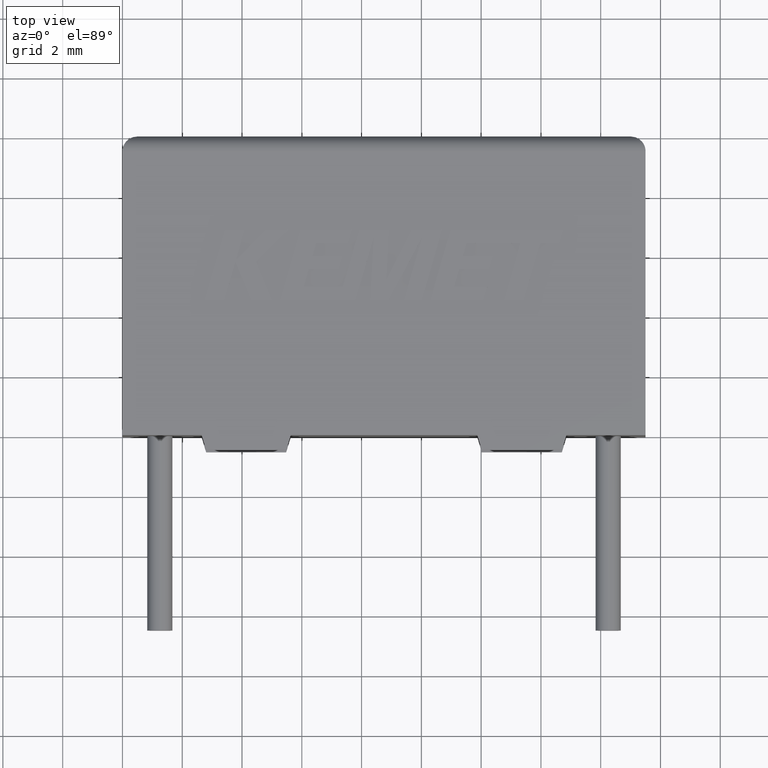
[diagram: clean part render]
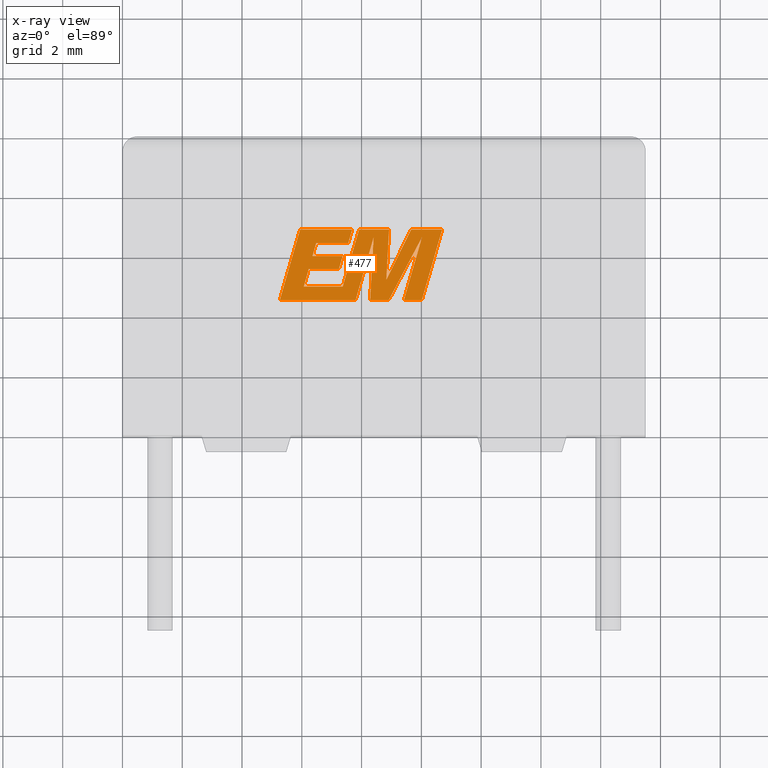
[diagram: x-ray — body ghosted, one internal face saturated and labeled with its STEP entity id]
A machine part, top view, then the same camera in x-ray: the body is ghosted and one INTERNAL B-rep face — a face not visible from any outside direction — is saturated and labeled: STEP entity #477.
In plain terms, the highlighted planar face has unit normal (0, 0, -1).
Its self-contained STEP definition (entity closure, byte-faithful):
#2 = CARTESIAN_POINT ( 'NONE',  ( 7.241153005273329100, 5.555110394430525600, 4.500000000000000000 ) ) ;
#4 = VERTEX_POINT ( 'NONE', #2803 ) ;
#7 = EDGE_CURVE ( 'NONE', #4, #2671, #2083, .T. ) ;
#32 = VECTOR ( 'NONE', #2442, 1000.000000000000100 ) ;
#78 = VECTOR ( 'NONE', #2098, 1000.000000000000000 ) ;
#80 = VERTEX_POINT ( 'NONE', #314 ) ;
#116 = ORIENTED_EDGE ( 'NONE', *, *, #2719, .F. ) ;
#183 = CARTESIAN_POINT ( 'NONE',  ( 7.801364874262980600, 4.522999999999926900, 4.500000000000000000 ) ) ;
#190 = VECTOR ( 'NONE', #1129, 1000.000000000000200 ) ;
#258 = LINE ( 'NONE', #2653, #609 ) ;
#292 = VECTOR ( 'NONE', #537, 1000.000000000000100 ) ;
#298 = VECTOR ( 'NONE', #2404, 1000.000000000000000 ) ;
#313 = ORIENTED_EDGE ( 'NONE', *, *, #2253, .F. ) ;
#314 = CARTESIAN_POINT ( 'NONE',  ( 7.916534120704699100, 6.875176084403357800, 4.500000000000000000 ) ) ;
#338 = EDGE_CURVE ( 'NONE', #2437, #1496, #789, .T. ) ;
#375 = LINE ( 'NONE', #1900, #3125 ) ;
#381 = CARTESIAN_POINT ( 'NONE',  ( 9.661220449992331500, 6.875176084403357800, 4.500000000000000000 ) ) ;
#406 = ORIENTED_EDGE ( 'NONE', *, *, #2741, .F. ) ;
#436 = FACE_OUTER_BOUND ( 'NONE', #3225, .T. ) ;
#462 = CARTESIAN_POINT ( 'NONE',  ( 5.944209849470560400, 6.875176084403357800, 4.500000000000000000 ) ) ;
#471 = DIRECTION ( 'NONE',  ( 0.2763139702539115800, 0.9610674221107072800, 0.0000000000000000000 ) ) ;
#477 = ADVANCED_FACE ( 'NONE', ( #436 ), #1296, .T. ) ;
#479 = ORIENTED_EDGE ( 'NONE', *, *, #2585, .F. ) ;
#483 = CARTESIAN_POINT ( 'NONE',  ( 10.01660091485718100, 4.522999999999926900, 4.500000000000000000 ) ) ;
#493 = DIRECTION ( 'NONE',  ( 1.000000000000000000, 0.0000000000000000000, 0.0000000000000000000 ) ) ;
#528 = VECTOR ( 'NONE', #2141, 1000.000000000000000 ) ;
#537 = DIRECTION ( 'NONE',  ( 0.2732148821745925000, 0.9619530280415585800, 0.0000000000000000000 ) ) ;
#547 = ORIENTED_EDGE ( 'NONE', *, *, #1679, .F. ) ;
#568 = EDGE_CURVE ( 'NONE', #2751, #80, #2111, .T. ) ;
#571 = LINE ( 'NONE', #1518, #292 ) ;
#580 = VERTEX_POINT ( 'NONE', #381 ) ;
#597 = ORIENTED_EDGE ( 'NONE', *, *, #2550, .F. ) ;
#609 = VECTOR ( 'NONE', #2703, 1000.000000000000000 ) ;
#615 = DIRECTION ( 'NONE',  ( -1.000000000000000000, 0.0000000000000000000, 0.0000000000000000000 ) ) ;
#636 = VERTEX_POINT ( 'NONE', #1432 ) ;
#637 = ORIENTED_EDGE ( 'NONE', *, *, #3123, .F. ) ;
#639 = VERTEX_POINT ( 'NONE', #947 ) ;
#644 = LINE ( 'NONE', #462, #2413 ) ;
#649 = LINE ( 'NONE', #2674, #298 ) ;
#673 = VERTEX_POINT ( 'NONE', #1946 ) ;
#678 = ORIENTED_EDGE ( 'NONE', *, *, #2998, .F. ) ;
#686 = CARTESIAN_POINT ( 'NONE',  ( 7.801364874262980600, 4.522999999999926900, 4.500000000000000000 ) ) ;
#696 = LINE ( 'NONE', #1854, #2427 ) ;
#720 = CARTESIAN_POINT ( 'NONE',  ( 6.355773792693551800, 5.989947064589872000, 4.500000000000000000 ) ) ;
#731 = CARTESIAN_POINT ( 'NONE',  ( 7.369060026916844000, 4.970502926892681500, 4.500000000000000000 ) ) ;
#761 = VERTEX_POINT ( 'NONE', #686 ) ;
#776 = LINE ( 'NONE', #1233, #32 ) ;
#789 = LINE ( 'NONE', #731, #2761 ) ;
#868 = ORIENTED_EDGE ( 'NONE', *, *, #338, .F. ) ;
#902 = EDGE_CURVE ( 'NONE', #2671, #1030, #1763, .T. ) ;
#917 = CARTESIAN_POINT ( 'NONE',  ( 7.241153005273329100, 5.555110394430525600, 4.500000000000000000 ) ) ;
#947 = CARTESIAN_POINT ( 'NONE',  ( 6.483080043273763400, 6.427451444381633300, 4.500000000000000000 ) ) ;
#954 = DIRECTION ( 'NONE',  ( 0.4668459304955211400, 0.8843386665637611400, 0.0000000000000000000 ) ) ;
#955 = EDGE_CURVE ( 'NONE', #3003, #1852, #2905, .T. ) ;
#957 = VERTEX_POINT ( 'NONE', #720 ) ;
#993 = DIRECTION ( 'NONE',  ( -0.2760118818968562100, -0.9611542233438689100, 0.0000000000000000000 ) ) ;
#1010 = CARTESIAN_POINT ( 'NONE',  ( 7.369060026916844000, 4.970502926892681500, 4.500000000000000000 ) ) ;
#1030 = VERTEX_POINT ( 'NONE', #1845 ) ;
#1039 = ORIENTED_EDGE ( 'NONE', *, *, #1846, .F. ) ;
#1059 = CARTESIAN_POINT ( 'NONE',  ( 9.661220449992331500, 6.875176084403357800, 4.500000000000000000 ) ) ;
#1071 = CARTESIAN_POINT ( 'NONE',  ( 9.418876612286860400, 4.522999999999926900, 4.500000000000000000 ) ) ;
#1129 = DIRECTION ( 'NONE',  ( -0.05596501978068205200, -0.9984327301130245800, 0.0000000000000000000 ) ) ;
#1184 = ORIENTED_EDGE ( 'NONE', *, *, #1590, .F. ) ;
#1186 = AXIS2_PLACEMENT_3D ( 'NONE', #2341, #1332, #2848 ) ;
#1233 = CARTESIAN_POINT ( 'NONE',  ( 6.065143635469668800, 4.970502926892681500, 4.500000000000000000 ) ) ;
#1234 = CARTESIAN_POINT ( 'NONE',  ( 8.912326471646855100, 4.522999999999926900, 4.500000000000000000 ) ) ;
#1266 = VERTEX_POINT ( 'NONE', #1696 ) ;
#1292 = CARTESIAN_POINT ( 'NONE',  ( 6.065143635469668800, 4.970502926892681500, 4.500000000000000000 ) ) ;
#1296 = PLANE ( 'NONE',  #1186 ) ;
#1301 = ORIENTED_EDGE ( 'NONE', *, *, #2764, .F. ) ;
#1310 = VECTOR ( 'NONE', #1450, 1000.000000000000000 ) ;
#1324 = CARTESIAN_POINT ( 'NONE',  ( 10.02312357218991500, 6.627164912981995400, 4.500000000000000000 ) ) ;
#1325 = VECTOR ( 'NONE', #1718, 1000.000000000000100 ) ;
#1332 = DIRECTION ( 'NONE',  ( 0.0000000000000000000, 0.0000000000000000000, -1.000000000000000000 ) ) ;
#1338 = VECTOR ( 'NONE', #1546, 1000.000000000000000 ) ;
#1347 = CARTESIAN_POINT ( 'NONE',  ( 7.681918713741795900, 6.875176084403357800, 4.500000000000000000 ) ) ;
#1371 = VERTEX_POINT ( 'NONE', #1234 ) ;
#1421 = ORIENTED_EDGE ( 'NONE', *, *, #1765, .F. ) ;
#1432 = CARTESIAN_POINT ( 'NONE',  ( 10.69286888281140300, 6.875176084403357800, 4.500000000000000000 ) ) ;
#1437 = CARTESIAN_POINT ( 'NONE',  ( 8.827784731893460800, 5.194751267950637800, 4.500000000000000000 ) ) ;
#1443 = VERTEX_POINT ( 'NONE', #2043 ) ;
#1445 = CARTESIAN_POINT ( 'NONE',  ( 8.912326471646855100, 4.522999999999926900, 4.500000000000000000 ) ) ;
#1450 = DIRECTION ( 'NONE',  ( 1.000000000000000000, 0.0000000000000000000, 0.0000000000000000000 ) ) ;
#1470 = VECTOR ( 'NONE', #2325, 1000.000000000000000 ) ;
#1473 = CARTESIAN_POINT ( 'NONE',  ( 6.483080043273763400, 6.427451444381633300, 4.500000000000000000 ) ) ;
#1496 = VERTEX_POINT ( 'NONE', #1292 ) ;
#1518 = CARTESIAN_POINT ( 'NONE',  ( 7.554755503892309300, 6.427451444381633300, 4.500000000000000000 ) ) ;
#1540 = CARTESIAN_POINT ( 'NONE',  ( 9.418876612286860400, 4.522999999999926900, 4.500000000000000000 ) ) ;
#1546 = DIRECTION ( 'NONE',  ( 1.000000000000000000, 0.0000000000000000000, 0.0000000000000000000 ) ) ;
#1570 = ORIENTED_EDGE ( 'NONE', *, *, #902, .F. ) ;
#1590 = EDGE_CURVE ( 'NONE', #1443, #1779, #1993, .T. ) ;
#1650 = ORIENTED_EDGE ( 'NONE', *, *, #2261, .F. ) ;
#1679 = EDGE_CURVE ( 'NONE', #2198, #2751, #696, .T. ) ;
#1696 = CARTESIAN_POINT ( 'NONE',  ( 10.01660091485718100, 4.522999999999926900, 4.500000000000000000 ) ) ;
#1705 = EDGE_CURVE ( 'NONE', #957, #639, #2583, .T. ) ;
#1709 = VECTOR ( 'NONE', #3159, 1000.000000000000100 ) ;
#1718 = DIRECTION ( 'NONE',  ( 0.2746459304916904500, 0.9615454294334477800, 0.0000000000000000000 ) ) ;
#1729 = ORIENTED_EDGE ( 'NONE', *, *, #1705, .F. ) ;
#1757 = VECTOR ( 'NONE', #2755, 1000.000000000000000 ) ;
#1763 = LINE ( 'NONE', #2, #1325 ) ;
#1765 = EDGE_CURVE ( 'NONE', #1496, #4, #776, .T. ) ;
#1779 = VERTEX_POINT ( 'NONE', #2206 ) ;
#1792 = CARTESIAN_POINT ( 'NONE',  ( 7.554755503892309300, 6.427451444381633300, 4.500000000000000000 ) ) ;
#1844 = ORIENTED_EDGE ( 'NONE', *, *, #955, .F. ) ;
#1845 = CARTESIAN_POINT ( 'NONE',  ( 7.365355271991178100, 5.989947064589872000, 4.500000000000000000 ) ) ;
#1846 = EDGE_CURVE ( 'NONE', #1852, #1266, #2102, .T. ) ;
#1847 = CARTESIAN_POINT ( 'NONE',  ( 8.918242698049985200, 6.875176084403357800, 4.500000000000000000 ) ) ;
#1852 = VERTEX_POINT ( 'NONE', #1071 ) ;
#1854 = CARTESIAN_POINT ( 'NONE',  ( 8.827784731893460800, 5.194751267950637800, 4.500000000000000000 ) ) ;
#1896 = CARTESIAN_POINT ( 'NONE',  ( 5.267348260593836400, 4.522999999999925100, 4.500000000000000000 ) ) ;
#1900 = CARTESIAN_POINT ( 'NONE',  ( 8.285257363114753900, 4.522999999999926900, 4.500000000000000000 ) ) ;
#1908 = VECTOR ( 'NONE', #2677, 1000.000000000000000 ) ;
#1945 = VECTOR ( 'NONE', #954, 1000.000000000000200 ) ;
#1946 = CARTESIAN_POINT ( 'NONE',  ( 5.944209849470560400, 6.875176084403357800, 4.500000000000000000 ) ) ;
#1954 = CARTESIAN_POINT ( 'NONE',  ( 8.918242698049985200, 6.875176084403357800, 4.500000000000000000 ) ) ;
#1972 = EDGE_CURVE ( 'NONE', #580, #2198, #1990, .T. ) ;
#1973 = DIRECTION ( 'NONE',  ( -0.2762517575166160700, -0.9610853065513907900, 0.0000000000000000000 ) ) ;
#1990 = LINE ( 'NONE', #1059, #1757 ) ;
#1993 = LINE ( 'NONE', #2877, #190 ) ;
#2043 = CARTESIAN_POINT ( 'NONE',  ( 8.402636586962369600, 6.617080541452265800, 4.500000000000000000 ) ) ;
#2083 = LINE ( 'NONE', #2577, #1338 ) ;
#2098 = DIRECTION ( 'NONE',  ( -1.000000000000000000, 0.0000000000000000000, 0.0000000000000000000 ) ) ;
#2102 = LINE ( 'NONE', #1540, #2786 ) ;
#2111 = LINE ( 'NONE', #1847, #78 ) ;
#2132 = LINE ( 'NONE', #3206, #2178 ) ;
#2135 = CARTESIAN_POINT ( 'NONE',  ( 7.681918713741795900, 6.875176084403357800, 4.500000000000000000 ) ) ;
#2139 = EDGE_CURVE ( 'NONE', #636, #580, #649, .T. ) ;
#2141 = DIRECTION ( 'NONE',  ( -1.000000000000000000, 0.0000000000000000000, 0.0000000000000000000 ) ) ;
#2175 = LINE ( 'NONE', #483, #2654 ) ;
#2178 = VECTOR ( 'NONE', #1973, 1000.000000000000000 ) ;
#2198 = VERTEX_POINT ( 'NONE', #1437 ) ;
#2206 = CARTESIAN_POINT ( 'NONE',  ( 8.285257363114753900, 4.522999999999926900, 4.500000000000000000 ) ) ;
#2219 = DIRECTION ( 'NONE',  ( -0.2765379750249959400, -0.9610029908221278100, 0.0000000000000000000 ) ) ;
#2253 = EDGE_CURVE ( 'NONE', #1371, #3003, #2895, .T. ) ;
#2261 = EDGE_CURVE ( 'NONE', #80, #2437, #2132, .T. ) ;
#2325 = DIRECTION ( 'NONE',  ( 1.000000000000000000, 4.833865254349439700E-015, 0.0000000000000000000 ) ) ;
#2341 = CARTESIAN_POINT ( 'NONE',  ( 0.07943521965645371200, -8.529055050973587600, 4.499999999999998200 ) ) ;
#2368 = LINE ( 'NONE', #1347, #528 ) ;
#2373 = LINE ( 'NONE', #183, #1709 ) ;
#2404 = DIRECTION ( 'NONE',  ( -1.000000000000000000, 0.0000000000000000000, 0.0000000000000000000 ) ) ;
#2411 = LINE ( 'NONE', #2852, #1470 ) ;
#2413 = VECTOR ( 'NONE', #2219, 1000.000000000000000 ) ;
#2427 = VECTOR ( 'NONE', #3104, 1000.000000000000100 ) ;
#2437 = VERTEX_POINT ( 'NONE', #1010 ) ;
#2438 = DIRECTION ( 'NONE',  ( 1.000000000000000000, 0.0000000000000000000, 0.0000000000000000000 ) ) ;
#2442 = DIRECTION ( 'NONE',  ( 0.2740217765954066100, 0.9617234872620595800, 0.0000000000000000000 ) ) ;
#2447 = EDGE_CURVE ( 'NONE', #2497, #2559, #571, .T. ) ;
#2497 = VERTEX_POINT ( 'NONE', #1792 ) ;
#2528 = VERTEX_POINT ( 'NONE', #1896 ) ;
#2529 = ORIENTED_EDGE ( 'NONE', *, *, #568, .F. ) ;
#2550 = EDGE_CURVE ( 'NONE', #1030, #957, #258, .T. ) ;
#2559 = VERTEX_POINT ( 'NONE', #2135 ) ;
#2577 = CARTESIAN_POINT ( 'NONE',  ( 6.231714566706590300, 5.555110394430525600, 4.500000000000000000 ) ) ;
#2583 = LINE ( 'NONE', #2652, #1908 ) ;
#2585 = EDGE_CURVE ( 'NONE', #761, #1443, #2373, .T. ) ;
#2593 = ORIENTED_EDGE ( 'NONE', *, *, #3196, .F. ) ;
#2601 = ORIENTED_EDGE ( 'NONE', *, *, #2447, .F. ) ;
#2652 = CARTESIAN_POINT ( 'NONE',  ( 6.355773792693551800, 5.989947064589872000, 4.500000000000000000 ) ) ;
#2653 = CARTESIAN_POINT ( 'NONE',  ( 7.365355271991178100, 5.989947064589872000, 4.500000000000000000 ) ) ;
#2654 = VECTOR ( 'NONE', #471, 1000.000000000000100 ) ;
#2671 = VERTEX_POINT ( 'NONE', #917 ) ;
#2674 = CARTESIAN_POINT ( 'NONE',  ( 10.69286888281140300, 6.875176084403357800, 4.500000000000000000 ) ) ;
#2677 = DIRECTION ( 'NONE',  ( 0.2793947940878287500, 0.9601763114327596100, 0.0000000000000000000 ) ) ;
#2703 = DIRECTION ( 'NONE',  ( -1.000000000000000000, 0.0000000000000000000, 0.0000000000000000000 ) ) ;
#2719 = EDGE_CURVE ( 'NONE', #639, #2497, #2855, .T. ) ;
#2741 = EDGE_CURVE ( 'NONE', #673, #2528, #644, .T. ) ;
#2751 = VERTEX_POINT ( 'NONE', #1954 ) ;
#2752 = VECTOR ( 'NONE', #993, 1000.000000000000200 ) ;
#2755 = DIRECTION ( 'NONE',  ( -0.4443210308329059200, -0.8958676361827030400, 0.0000000000000000000 ) ) ;
#2761 = VECTOR ( 'NONE', #615, 1000.000000000000000 ) ;
#2764 = EDGE_CURVE ( 'NONE', #1266, #636, #2175, .T. ) ;
#2786 = VECTOR ( 'NONE', #493, 1000.000000000000000 ) ;
#2792 = ORIENTED_EDGE ( 'NONE', *, *, #7, .F. ) ;
#2803 = CARTESIAN_POINT ( 'NONE',  ( 6.231714566706590300, 5.555110394430525600, 4.500000000000000000 ) ) ;
#2848 = DIRECTION ( 'NONE',  ( -1.000000000000000000, 0.0000000000000000000, 0.0000000000000000000 ) ) ;
#2852 = CARTESIAN_POINT ( 'NONE',  ( 7.382684654667560400, 4.522999999999925100, 4.500000000000000000 ) ) ;
#2855 = LINE ( 'NONE', #1473, #1310 ) ;
#2877 = CARTESIAN_POINT ( 'NONE',  ( 8.402636586962369600, 6.617080541452265800, 4.500000000000000000 ) ) ;
#2895 = LINE ( 'NONE', #1445, #1945 ) ;
#2905 = LINE ( 'NONE', #3223, #2752 ) ;
#2983 = ORIENTED_EDGE ( 'NONE', *, *, #1972, .F. ) ;
#2998 = EDGE_CURVE ( 'NONE', #2528, #761, #2411, .T. ) ;
#3003 = VERTEX_POINT ( 'NONE', #1324 ) ;
#3104 = DIRECTION ( 'NONE',  ( 0.05375259206908267900, 0.9985542843760947300, 0.0000000000000000000 ) ) ;
#3123 = EDGE_CURVE ( 'NONE', #2559, #673, #2368, .T. ) ;
#3125 = VECTOR ( 'NONE', #2438, 1000.000000000000000 ) ;
#3144 = ORIENTED_EDGE ( 'NONE', *, *, #2139, .F. ) ;
#3159 = DIRECTION ( 'NONE',  ( 0.2759782365590801000, 0.9611638845408936300, 0.0000000000000000000 ) ) ;
#3196 = EDGE_CURVE ( 'NONE', #1779, #1371, #375, .T. ) ;
#3206 = CARTESIAN_POINT ( 'NONE',  ( 7.916534120704699100, 6.875176084403357800, 4.500000000000000000 ) ) ;
#3223 = CARTESIAN_POINT ( 'NONE',  ( 10.02312357218991500, 6.627164912981995400, 4.500000000000000000 ) ) ;
#3225 = EDGE_LOOP ( 'NONE', ( #3144, #1301, #1039, #1844, #313, #2593, #1184, #479, #678, #406, #637, #2601, #116, #1729, #597, #1570, #2792, #1421, #868, #1650, #2529, #547, #2983 ) ) ;